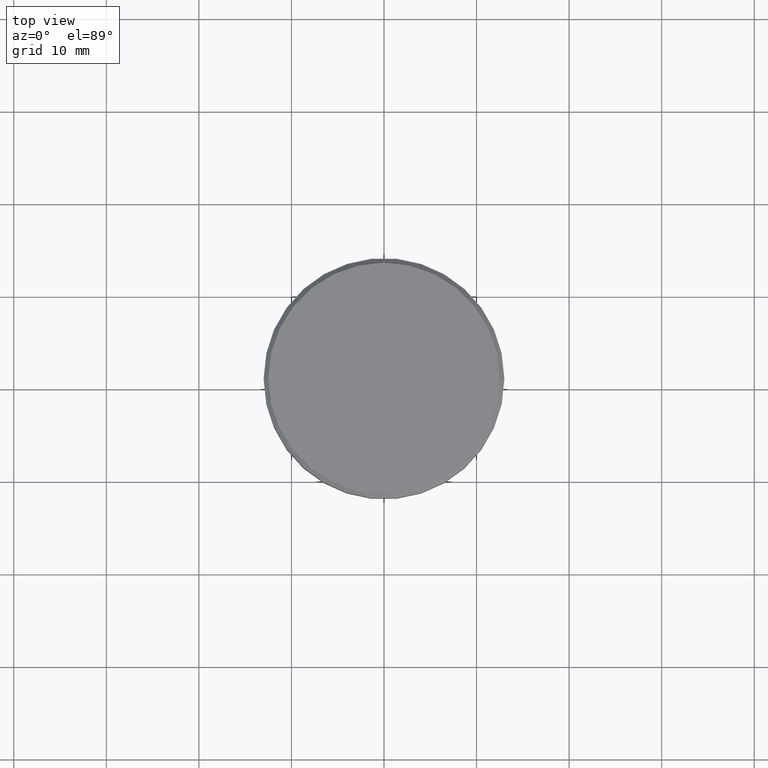
[diagram: clean part render]
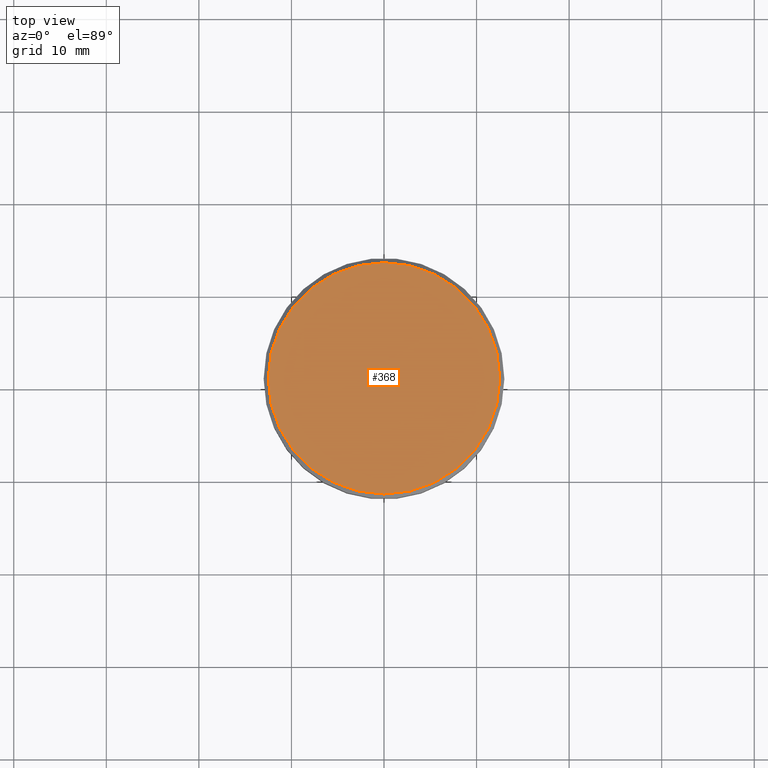
[diagram: same view with one face highlighted and labeled with its STEP entity id]
A machine part, top view. The second image highlights one B-rep face of the part: STEP entity #368.
In plain terms, the highlighted planar face has unit normal (0, -0, 1).
Its self-contained STEP definition (entity closure, byte-faithful):
#5 = DIRECTION ( 'NONE',  ( -0.000000000000000000, -0.000000000000000000, 1.000000000000000000 ) ) ;
#110 = ORIENTED_EDGE ( 'NONE', *, *, #183, .T. ) ;
#129 = AXIS2_PLACEMENT_3D ( 'NONE', #1128, #1150, #494 ) ;
#183 = EDGE_CURVE ( 'NONE', #806, #676, #827, .T. ) ;
#252 = PLANE ( 'NONE',  #790 ) ;
#257 = CARTESIAN_POINT ( 'NONE',  ( 0.000000000000000000, 0.000000000000000000, 0.000000000000000000 ) ) ;
#360 = CARTESIAN_POINT ( 'NONE',  ( 12.49999999999999645, 1.561424668912875111E-15, 0.000000000000000000 ) ) ;
#368 = ADVANCED_FACE ( 'NONE', ( #715 ), #252, .T. ) ;
#494 = DIRECTION ( 'NONE',  ( 1.000000000000000000, 0.000000000000000000, 0.000000000000000000 ) ) ;
#549 = CARTESIAN_POINT ( 'NONE',  ( 0.000000000000000000, 0.000000000000000000, 0.000000000000000000 ) ) ;
#571 = CIRCLE ( 'NONE', #937, 12.49999999999999645 ) ;
#629 = DIRECTION ( 'NONE',  ( 0.000000000000000000, -0.000000000000000000, 1.000000000000000000 ) ) ;
#676 = VERTEX_POINT ( 'NONE', #360 ) ;
#715 = FACE_OUTER_BOUND ( 'NONE', #1110, .T. ) ;
#790 = AXIS2_PLACEMENT_3D ( 'NONE', #257, #629, #994 ) ;
#806 = VERTEX_POINT ( 'NONE', #1014 ) ;
#827 = CIRCLE ( 'NONE', #129, 12.49999999999999645 ) ;
#841 = ORIENTED_EDGE ( 'NONE', *, *, #1016, .T. ) ;
#922 = DIRECTION ( 'NONE',  ( 1.000000000000000000, 0.000000000000000000, 0.000000000000000000 ) ) ;
#937 = AXIS2_PLACEMENT_3D ( 'NONE', #549, #5, #922 ) ;
#994 = DIRECTION ( 'NONE',  ( 1.000000000000000000, 0.000000000000000000, 0.000000000000000000 ) ) ;
#1014 = CARTESIAN_POINT ( 'NONE',  ( -12.49999999999999645, 0.000000000000000000, 0.000000000000000000 ) ) ;
#1016 = EDGE_CURVE ( 'NONE', #676, #806, #571, .T. ) ;
#1110 = EDGE_LOOP ( 'NONE', ( #110, #841 ) ) ;
#1128 = CARTESIAN_POINT ( 'NONE',  ( 0.000000000000000000, 0.000000000000000000, 0.000000000000000000 ) ) ;
#1150 = DIRECTION ( 'NONE',  ( -0.000000000000000000, -0.000000000000000000, 1.000000000000000000 ) ) ;